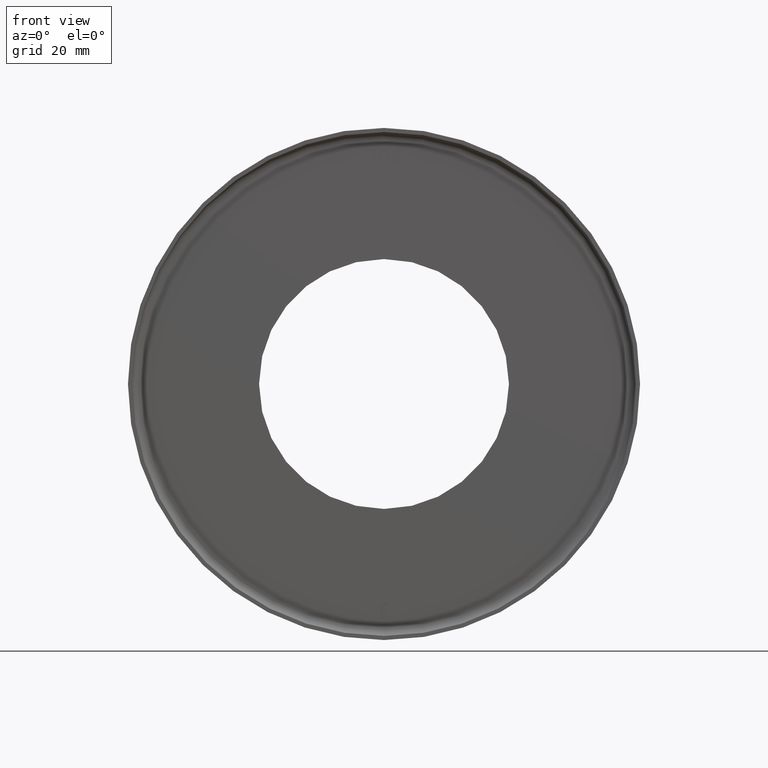
[diagram: clean part render]
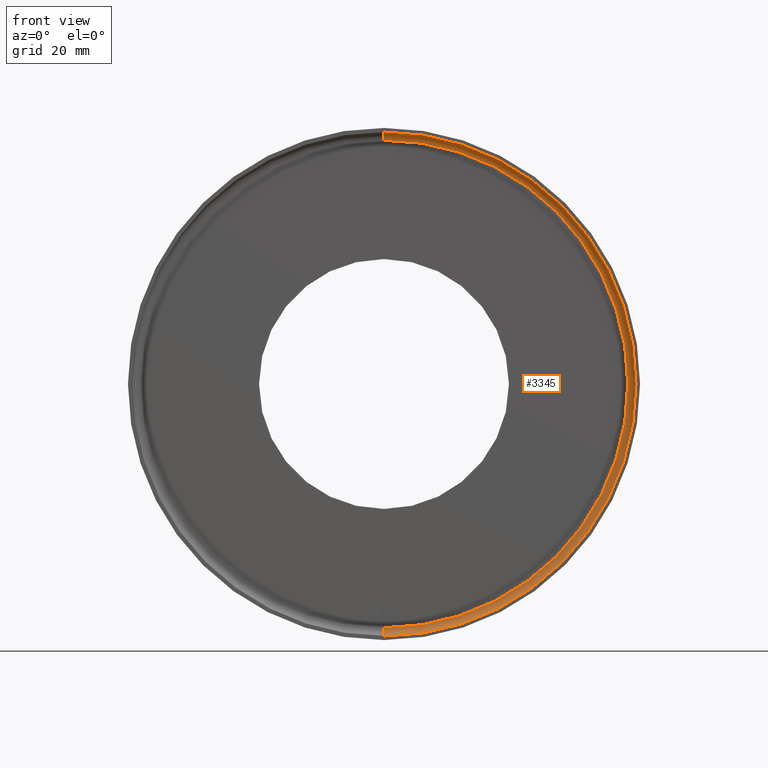
[diagram: same view with one face highlighted and labeled with its STEP entity id]
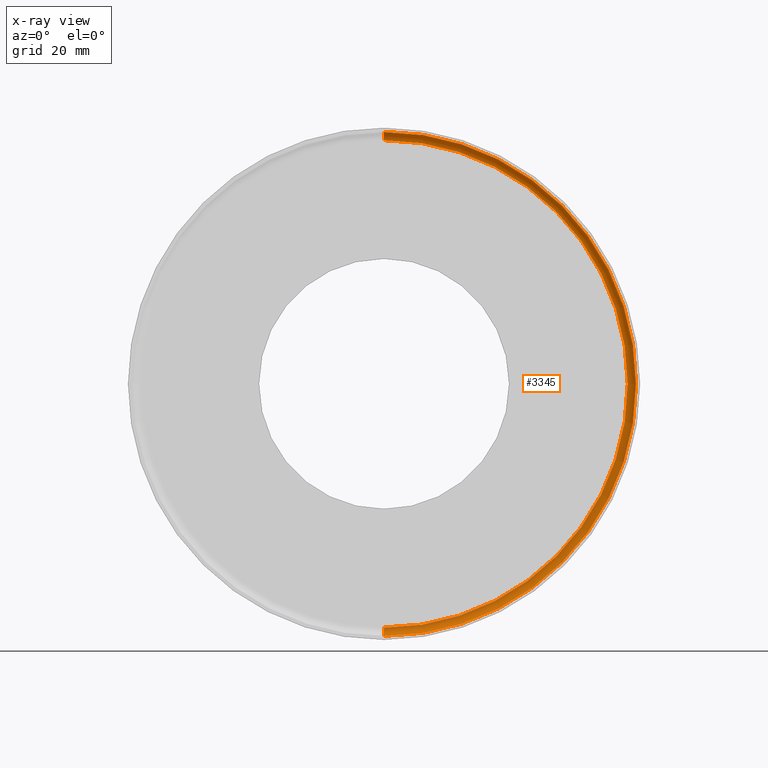
[diagram: x-ray of the same camera — body ghosted, the highlighted face saturated]
A machine part, front view. The second image highlights one B-rep face of the part: STEP entity #3345.
The next image is the same camera in x-ray: the body ghosted, the highlighted face saturated — about 0% of this face is hidden behind the body in this view.
In plain terms, the highlighted toroidal blend (fillet) surface has major radius 59.5 mm and minor (blend) radius 2 mm.
Its self-contained STEP definition (entity closure, byte-faithful):
#1072 = DIRECTION ( 'NONE',  ( -0.000000000000000000, -1.000000000000000000, -0.000000000000000000 ) ) ;
#1140 = AXIS2_PLACEMENT_3D ( 'NONE', #14955, #13605, #16250 ) ;
#1309 = CARTESIAN_POINT ( 'NONE',  ( 7.531577814756222656E-15, 22.00000000000000355, 61.50000000000000000 ) ) ;
#1388 = DIRECTION ( 'NONE',  ( -1.000000000000000000, 0.000000000000000000, 0.000000000000000000 ) ) ;
#1572 = ORIENTED_EDGE ( 'NONE', *, *, #11927, .F. ) ;
#2152 = CARTESIAN_POINT ( 'NONE',  ( 0.000000000000000000, 22.00000000000000355, -61.50000000000000000 ) ) ;
#2264 = AXIS2_PLACEMENT_3D ( 'NONE', #8742, #1072, #11261 ) ;
#2782 = EDGE_CURVE ( 'NONE', #15231, #7300, #8708, .T. ) ;
#3345 = ADVANCED_FACE ( 'NONE', ( #16531 ), #13907, .F. ) ;
#3527 = VERTEX_POINT ( 'NONE', #3619 ) ;
#3619 = CARTESIAN_POINT ( 'NONE',  ( 7.409113134841485930E-15, 24.00000000000000000, 59.50000000000000000 ) ) ;
#3715 = CARTESIAN_POINT ( 'NONE',  ( 0.000000000000000000, 22.00000000000000355, 0.000000000000000000 ) ) ;
#3716 = DIRECTION ( 'NONE',  ( -0.000000000000000000, -1.000000000000000000, -0.000000000000000000 ) ) ;
#4068 = EDGE_LOOP ( 'NONE', ( #1572, #12846, #11506, #15560 ) ) ;
#4356 = CIRCLE ( 'NONE', #16133, 2.000000000000001776 ) ;
#4479 = CARTESIAN_POINT ( 'NONE',  ( 0.000000000000000000, 24.00000000000000000, -59.50000000000000000 ) ) ;
#4724 = AXIS2_PLACEMENT_3D ( 'NONE', #8830, #3716, #5015 ) ;
#5015 = DIRECTION ( 'NONE',  ( 0.000000000000000000, 0.000000000000000000, -1.000000000000000000 ) ) ;
#5237 = DIRECTION ( 'NONE',  ( 0.000000000000000000, 0.000000000000000000, 1.000000000000000000 ) ) ;
#5835 = CIRCLE ( 'NONE', #2264, 59.50000000000000000 ) ;
#6202 = DIRECTION ( 'NONE',  ( -0.000000000000000000, -1.000000000000000000, -0.000000000000000000 ) ) ;
#7300 = VERTEX_POINT ( 'NONE', #1309 ) ;
#7418 = VERTEX_POINT ( 'NONE', #4479 ) ;
#7578 = EDGE_CURVE ( 'NONE', #7418, #3527, #5835, .T. ) ;
#8708 = CIRCLE ( 'NONE', #4724, 61.50000000000000000 ) ;
#8742 = CARTESIAN_POINT ( 'NONE',  ( 0.000000000000000000, 24.00000000000000000, 0.000000000000000000 ) ) ;
#8830 = CARTESIAN_POINT ( 'NONE',  ( 0.000000000000000000, 22.00000000000000355, 0.000000000000000000 ) ) ;
#11261 = DIRECTION ( 'NONE',  ( 0.000000000000000000, 0.000000000000000000, -1.000000000000000000 ) ) ;
#11383 = EDGE_CURVE ( 'NONE', #7418, #15231, #4356, .T. ) ;
#11506 = ORIENTED_EDGE ( 'NONE', *, *, #11383, .T. ) ;
#11927 = EDGE_CURVE ( 'NONE', #3527, #7300, #12167, .T. ) ;
#12167 = CIRCLE ( 'NONE', #1140, 2.000000000000001776 ) ;
#12846 = ORIENTED_EDGE ( 'NONE', *, *, #7578, .F. ) ;
#13078 = AXIS2_PLACEMENT_3D ( 'NONE', #3715, #6202, #15312 ) ;
#13605 = DIRECTION ( 'NONE',  ( 1.000000000000000000, 0.000000000000000000, -1.224646799147353207E-16 ) ) ;
#13907 = TOROIDAL_SURFACE ( 'NONE', #13078, 59.50000000000000000, 2.000000000000000000 ) ;
#14339 = CARTESIAN_POINT ( 'NONE',  ( 0.000000000000000000, 22.00000000000000355, -59.50000000000000000 ) ) ;
#14955 = CARTESIAN_POINT ( 'NONE',  ( 7.286648454926750781E-15, 22.00000000000000355, 59.50000000000000000 ) ) ;
#15231 = VERTEX_POINT ( 'NONE', #2152 ) ;
#15312 = DIRECTION ( 'NONE',  ( 0.000000000000000000, 0.000000000000000000, -1.000000000000000000 ) ) ;
#15560 = ORIENTED_EDGE ( 'NONE', *, *, #2782, .T. ) ;
#16133 = AXIS2_PLACEMENT_3D ( 'NONE', #14339, #1388, #5237 ) ;
#16250 = DIRECTION ( 'NONE',  ( -1.224646799147349509E-16, 0.000000000000000000, -1.000000000000000000 ) ) ;
#16531 = FACE_OUTER_BOUND ( 'NONE', #4068, .T. ) ;